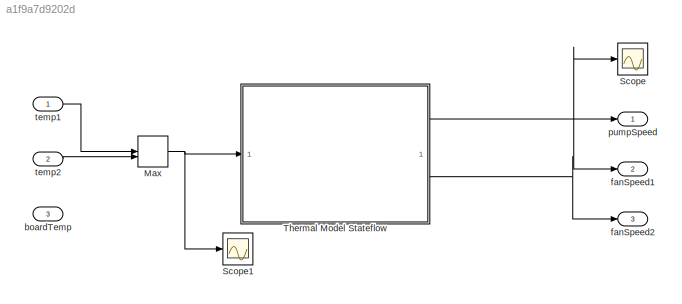
MODEL slx_a1f9a7d9202d
KIND model
CONFIG AbsTol = auto
CONFIG EnableMultiTasking = on
CONFIG FixedStep = 0.1
CONFIG MaxStep = auto
CONFIG MinStep = auto
CONFIG RelTol = 1e-3
CONFIG SampleTimeConstraint = Unconstrained
CONFIG SolverName = FixedStepDiscrete
CONFIG StartTime = 0.0
CONFIG StopTime = 10.0
BLOCK [MinMax] Max
  Function = max
  Inputs = 2
BLOCK [Scope] Scope
  Floating = off
  NumInputPorts = 1
  ScopeSpecificationString = Simulink.scopes.TimeScopeBlockCfg('CurrentConfiguration', extmgr.ConfigurationSet(extmgr.Configuration('Core','General UI',true),extmgr.Configuration('Core','Source UI',true),extmgr.Configuration('Sources','WiredSimulink',true),extmgr.Configuration('Visuals','Time Domain',true,'SerializedDisplays',{struct('MinYLimReal','-12.5','MaxYLimReal','112.5','YLabelReal','','MinYLimMag','0.00000','MaxYLimMa...<+1371ch>
BLOCK [Scope] Scope1
  Floating = off
  NumInputPorts = 1
  ScopeSpecificationString = Simulink.scopes.TimeScopeBlockCfg('CurrentConfiguration', extmgr.ConfigurationSet(extmgr.Configuration('Core','General UI',true),extmgr.Configuration('Core','Source UI',true),extmgr.Configuration('Sources','WiredSimulink',true,'DataLoggingVariableName','ScopeData1'),extmgr.Configuration('Visuals','Time Domain',true,'SerializedDisplays',{struct('MinYLimReal','-750.00000','MaxYLimReal','6750.00000',...<+1461ch>
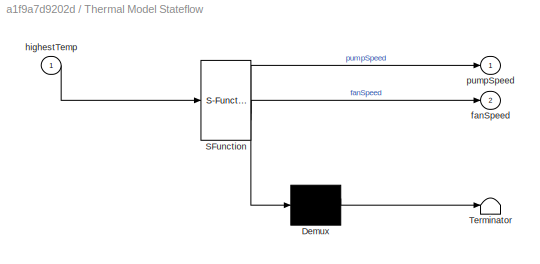
BLOCK [SubSystem] Thermal Model Stateflow
  ErrorFcn = Stateflow.Translate.translate
  PermitHierarchicalResolution = ExplicitOnly
  SFBlockType = Chart
  TreatAsAtomicUnit = on
BLOCK [Demux] Thermal Model Stateflow/ Demux 
  Outputs = 1
BLOCK [S-Function] Thermal Model Stateflow/ SFunction 
  EnableBusSupport = on
  FunctionName = sf_sfun
  PortCounts = [1 3]
  SFcnIsStateOwnerBlock = off
  SFunctionDeploymentMode = off
  Tag = Stateflow S-Function 3
BLOCK [Terminator] Thermal Model Stateflow/ Terminator 
BLOCK [Outport] Thermal Model Stateflow/fanSpeed
  Port = 2
BLOCK [Inport] Thermal Model Stateflow/highestTemp
BLOCK [Outport] Thermal Model Stateflow/pumpSpeed
BLOCK [Inport] boardTemp
  OutDataTypeStr = uint16
  Port = 3
BLOCK [Outport] fanSpeed1
  Port = 2
BLOCK [Outport] fanSpeed2
  Port = 3
BLOCK [Outport] pumpSpeed
  OutDataTypeStr = uint8
BLOCK [Inport] temp1
  OutDataTypeStr = uint16
BLOCK [Inport] temp2
  OutDataTypeStr = uint16
  Port = 2
NET Max:1 -> Scope1:1, Thermal Model Stateflow:1
LINE Thermal Model Stateflow:1 -> pumpSpeed:1
NET Thermal Model Stateflow:2 -> Scope:1, fanSpeed1:1, fanSpeed2:1
LINE temp1:1 -> Max:1
LINE temp2:1 -> Max:2
note: NET lines group one-source signal fan-out (src -> all destinations, sorted); 1:1 wires keep LINE
CHART Thermal Model Stateflow states=4 transitions=7
  STATE_LABEL 'COOL_LEVEL_MAX\npumpSpeed = 100;\nfanSpeed = 100;'
  STATE_LABEL 'COOL_LEVEL_1\npumpSpeed = 75;\nfanSpeed = 75;\n'
  STATE_LABEL 'COOL_LEVEL_2\npumpSpeed = 50;\nfanSpeed = 50;'
  STATE_LABEL 'COOL_LEVEL_IDLE\npumpSpeed = 50;\nfanSpeed = 0;\n'
CHART  states=0 transitions=0
